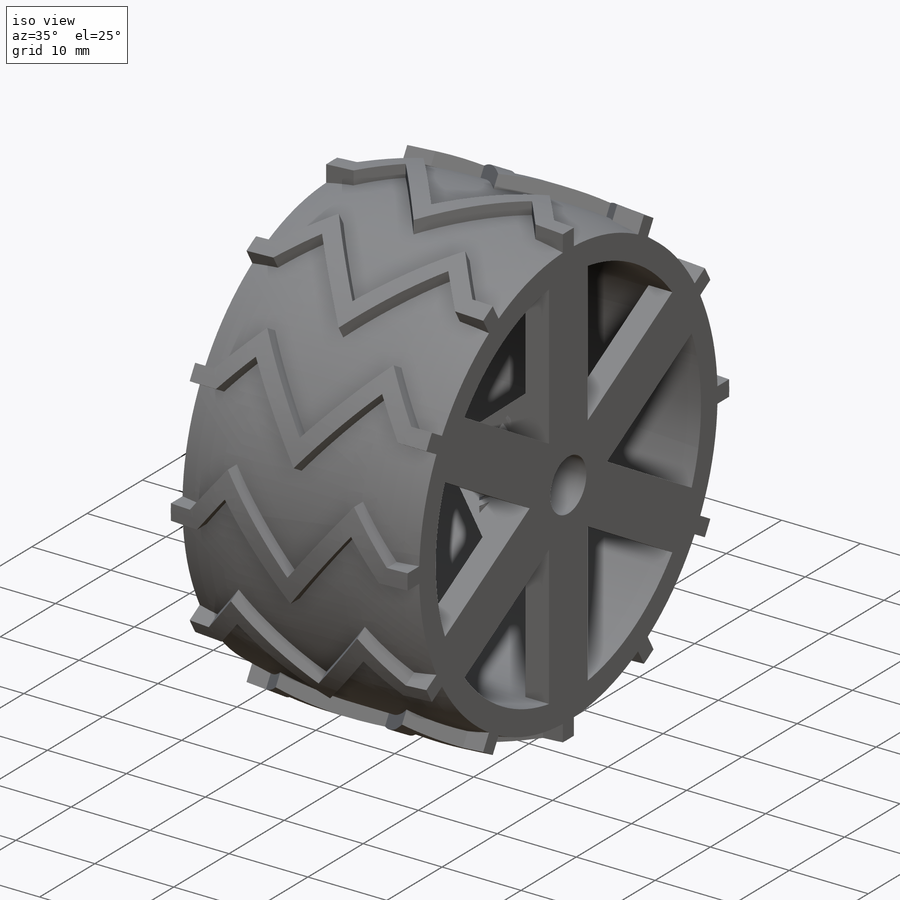
[diagram: iso view]
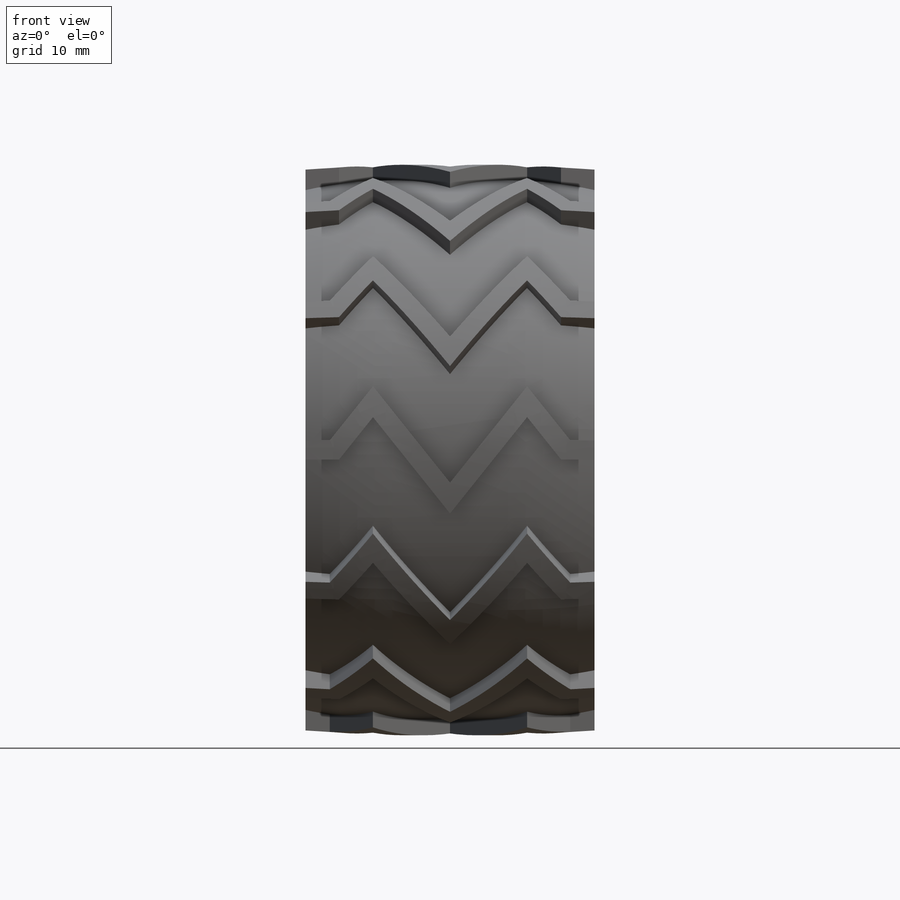
[diagram: front view]
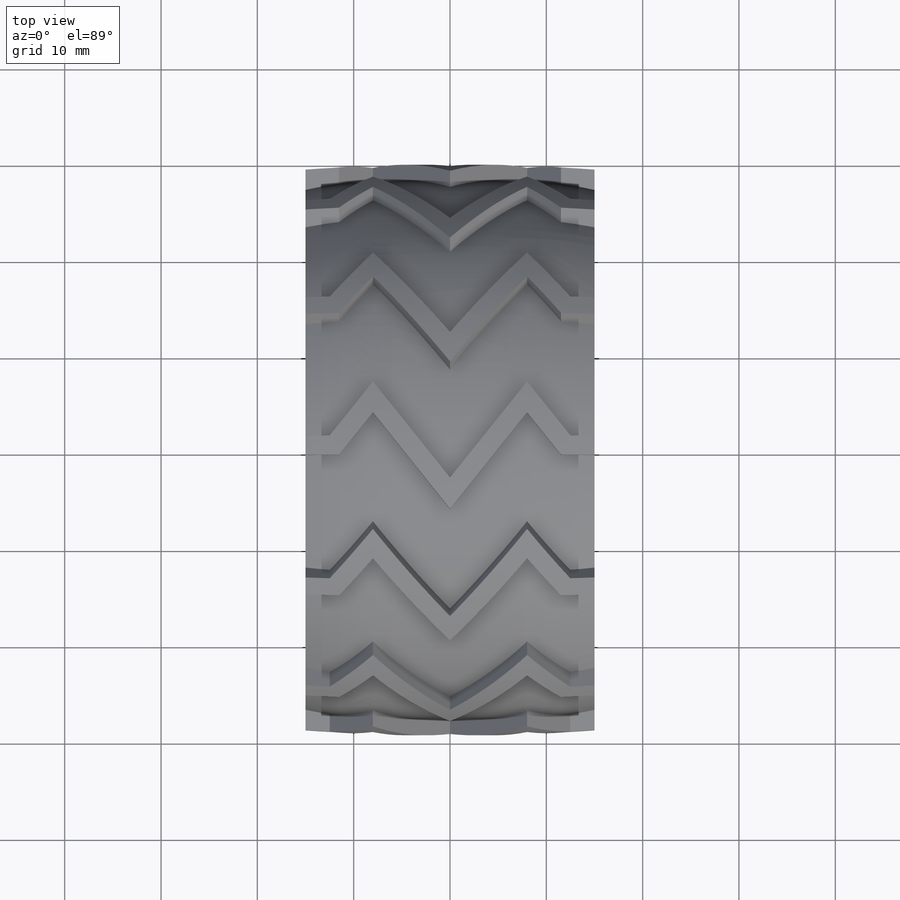
[diagram: top view]
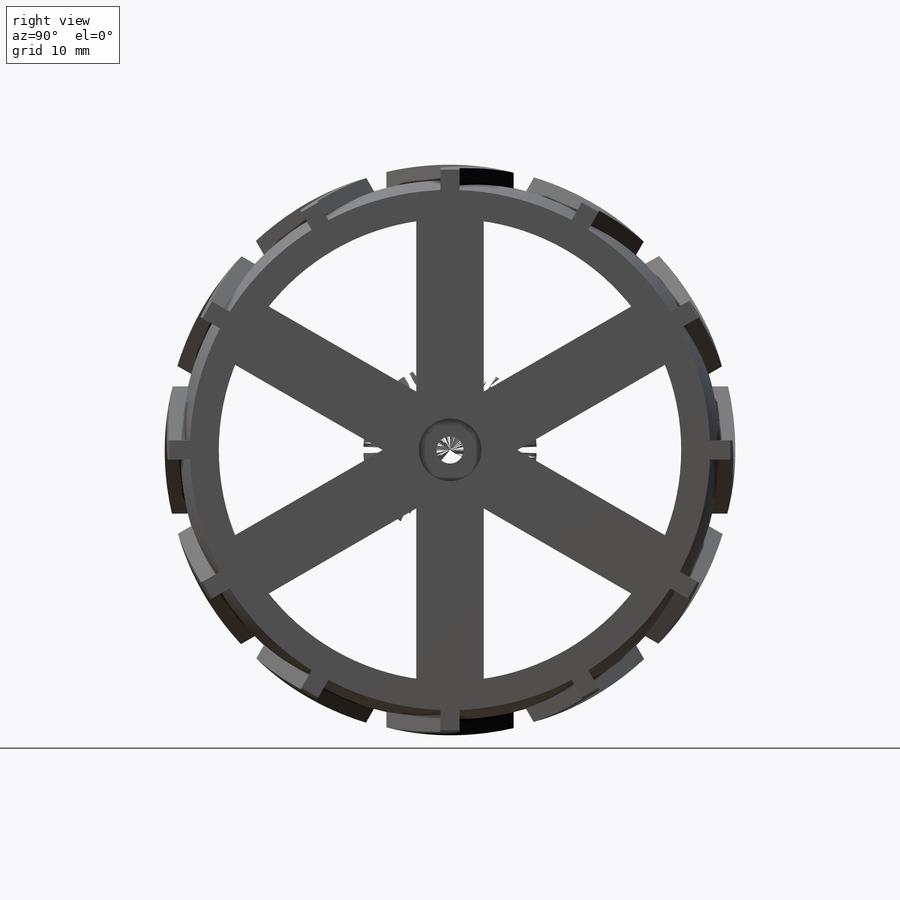
[diagram: right view]
SOLIDWORKS PART (.sldprt)
format: sldprt  version: not decoded by parser v0  size: 1,666,560 bytes
history: native  units: mm
features: sketch x11, cut_extrude x6, plane x4, pattern_circular x2, extrude x2, material x1, revolve x1, cut_revolve x1, mirror x1, delete_body x1 (+10 scaffold rows collapsed)
feature tree (40):
  scaffold x10  (default folders/planes/origin — collapsed)
  material  "ABS"
  plane  "Přední rovina"
  plane  "Horní rovina"
  plane  "Pravá rovina"
  sketch  "Skica1"  dims[D1=56.0mm D2=15.0mm D3=3.0mm D4=4.0mm D5=6.0mm]
  revolve  "Rotovat1"  Angle=360deg
  plane  "Rovina1"  Offset=30mm
  sketch  "Skica3"  dims[c1.D1=~3.694192mm c2.D1=70.0deg c3.D1=5.0mm c3.D2=3.0mm c4.D1=10.0mm c4.D5=2.0mm c4.D6=1.0mm c4.D7=5.0mm]
  pattern_circular  "Kruhové pole1"  Count=12 Angle=360deg
  sketch  "Skica4"  dims[D1=3.0mm]
  cut_extrude  "Odebrat vysunutím2"  Depth=30mm
  sketch  "Skica5"  dims[c1.D1=~32.820216mm c1.D2=32.0mm c2.D1=6.0mm c2.D2=10.0mm]
  cut_extrude  "Odebrat vysunutím3"  Depth=30mm
  sketch  "Skica6"  dims[D1=1.0mm]
  cut_revolve  "Odebrat rotací1"  Angle=360deg
  sketch  "Skica7"  dims[c1.D1=3.0mm c1.D2=3.0mm c1.D3=6.0mm c1.D4=11.0mm c2.D4=130.0deg c2.D5=11.0mm c2.D6=9.0mm c2.D3=9.0mm c2.D2=13.0mm]
  extrude  "Přidat vysunutím1"  Depth=7mm
  pattern_circular  "Kruhové pole2"  Count=6 Angle=60deg
  sketch  "Skica9"  dims[D1=6.5mm]
  cut_extrude  "Odebrat vysunutím4"  Depth=4mm
  sketch  "Skica10"  dims[D1=2.8mm]
  cut_extrude  "Odebrat vysunutím5"  Depth=12mm
  sketch  "Skica11"  dims[D1=5.5mm]
  cut_extrude  "Odebrat vysunutím6"  Depth=2.5mm
  sketch  "Skica12"  dims[D1=0.0mm]
  extrude  "Přidat vysunutím2"  [1 undecoded]
  sketch  "Skica13"  dims[D1=6.5mm]
  cut_extrude  "Odebrat vysunutím7"  Depth=2mm
  mirror  "Zrcadlit1"
  delete_body  "Tělo-Odstranit1"
decode coverage: 22 of 25 modeling features carry decoded parameters
note: ~ marks probable driven/reference dimensions
note: 1 parameter value undecoded
note: suppression state not decoded; provenance and decode notes live in map.json
